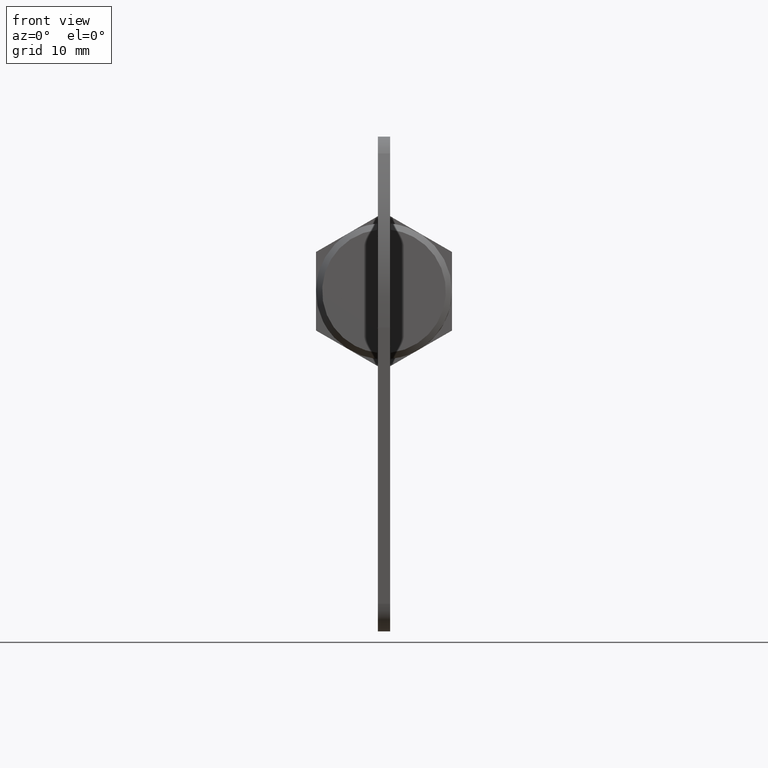
[diagram: clean part render]
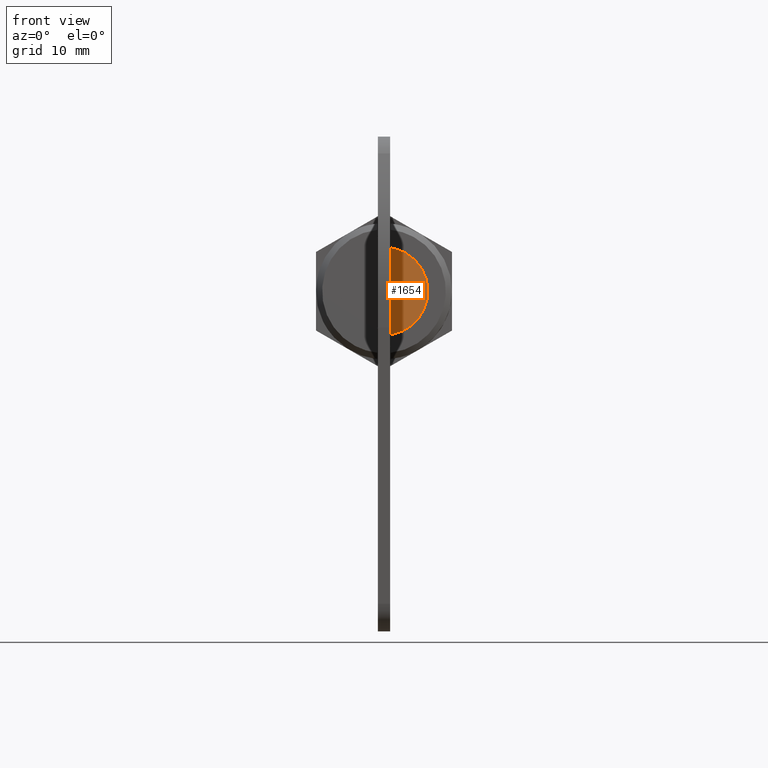
[diagram: same view with one face highlighted and labeled with its STEP entity id]
A machine part, front view. The second image highlights one B-rep face of the part: STEP entity #1654.
In plain terms, the highlighted face is a freeform B-spline surface patch.
Its self-contained STEP definition (entity closure, byte-faithful):
#1563=CARTESIAN_POINT('',(1.100000000000000,-5.999999999999920,-7.014271166700071));
#1564=VERTEX_POINT('',#1563);
#1570=CARTESIAN_POINT('',(1.100000000000000,-5.999999999999920,7.014271166700071));
#1571=VERTEX_POINT('',#1570);
#1572=CARTESIAN_POINT('',(1.100000000000000,-5.999999999999920,-7.014271166700071));
#1573=CARTESIAN_POINT('',(1.100000000000000,-5.999999999999920,7.014271166700071));
#1574=QUASI_UNIFORM_CURVE('',1,(#1572,#1573),.UNSPECIFIED.,.F.,.U.);
#1575=EDGE_CURVE('',#1564,#1571,#1574,.T.);
#1627=CARTESIAN_POINT('',(0.800297803699075,-5.999999999999920,-7.714996960753290));
#1628=CARTESIAN_POINT('',(0.800297803699075,-5.999999999999920,7.714997211603175));
#1629=CARTESIAN_POINT('',(7.399746560038030,-5.999999999999920,-7.714996960753290));
#1630=CARTESIAN_POINT('',(7.399746560038030,-5.999999999999920,7.714997211603175));
#1631=B_SPLINE_SURFACE_WITH_KNOTS('',1,1,((#1627,#1629),(#1628,#1630)),.UNSPECIFIED.,.F.,.F.,.U.,(2,2),(2,2),(0.0,15.429994172356460),(0.0,6.599448756338955),.UNSPECIFIED.);
#1632=CARTESIAN_POINT('',(1.100000000000000,-5.999999999999920,-7.014271166700071));
#1633=CARTESIAN_POINT('',(1.617014362335906,-5.999999999999927,-6.933292860143662));
#1634=CARTESIAN_POINT('',(2.531364826107649,-5.999999999999914,-6.683882239737847));
#1635=CARTESIAN_POINT('',(3.846217638862550,-5.999999999999927,-6.024077090982514));
#1636=CARTESIAN_POINT('',(4.841348400339790,-5.999999999999914,-5.245126314813217));
#1637=CARTESIAN_POINT('',(5.750480608597033,-5.999999999999933,-4.228614337008092));
#1638=CARTESIAN_POINT('',(6.497142476061963,-5.999999999999896,-3.018762233144755));
#1639=CARTESIAN_POINT('',(7.012190399348386,-5.999999999999925,-1.467622308000176));
#1640=CARTESIAN_POINT('',(7.165760654738546,-5.999999999999919,0.263201243542921));
#1641=CARTESIAN_POINT('',(6.913427237332189,-5.999999999999923,1.880255005076898));
#1642=CARTESIAN_POINT('',(6.317833904946236,-5.999999999999918,3.341392699139063));
#1643=CARTESIAN_POINT('',(5.561591134296731,-5.999999999999921,4.480705596628064));
#1644=CARTESIAN_POINT('',(4.606719269686198,-5.999999999999917,5.457606136458357));
#1645=CARTESIAN_POINT('',(3.183119324321085,-5.999999999999934,6.450543207956518));
#1646=CARTESIAN_POINT('',(1.927400737487129,-5.999999999999900,6.885123272321821));
#1647=CARTESIAN_POINT('',(1.100000000000000,-5.999999999999920,7.014271166700071));
#1648=B_SPLINE_CURVE_WITH_KNOTS('',3,(#1632,#1633,#1634,#1635,#1636,#1637,#1638,#1639,#1640,#1641,#1642,#1643,#1644,#1645,#1646,#1647),.UNSPECIFIED.,.F.,.U.,(4,1,1,1,1,1,1,1,1,1,1,1,1,4),(0.000000498829387,1.569958037172857,2.826055493316094,4.396168190889688,5.338234036047098,6.908307536800233,8.635455172301418,10.205392506447870,12.089457625250990,13.502504872129160,14.915608168905900,16.171677255029401,17.584798866669729,20.096819612907161),.UNSPECIFIED.);
#1649=EDGE_CURVE('',#1564,#1571,#1648,.T.);
#1650=ORIENTED_EDGE('',*,*,#1649,.T.);
#1651=ORIENTED_EDGE('',*,*,#1575,.F.);
#1652=EDGE_LOOP('',(#1650,#1651));
#1653=FACE_OUTER_BOUND('',#1652,.T.);
#1654=ADVANCED_FACE('',(#1653),#1631,.F.);